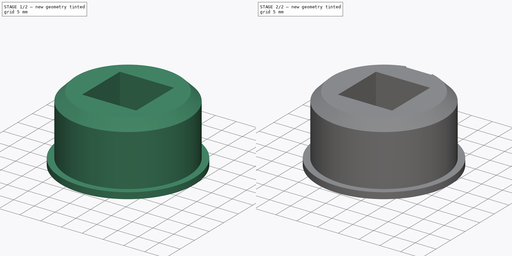
[diagram: build sequence overview — one tinted view per stage of 2, left to right]
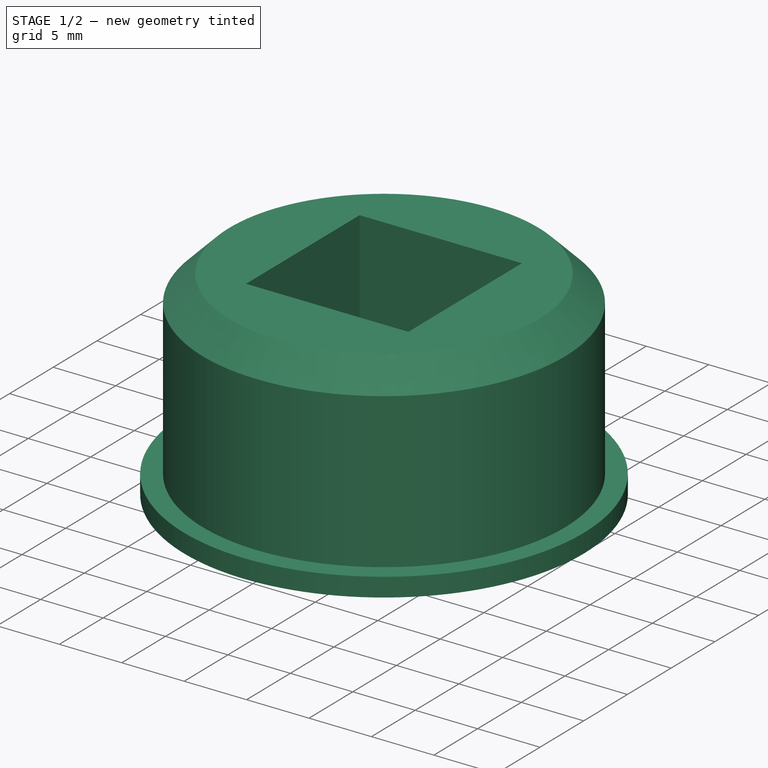
[diagram: stage 1 of 2 — iso view after this stage's code; geometry added in this stage tinted green]
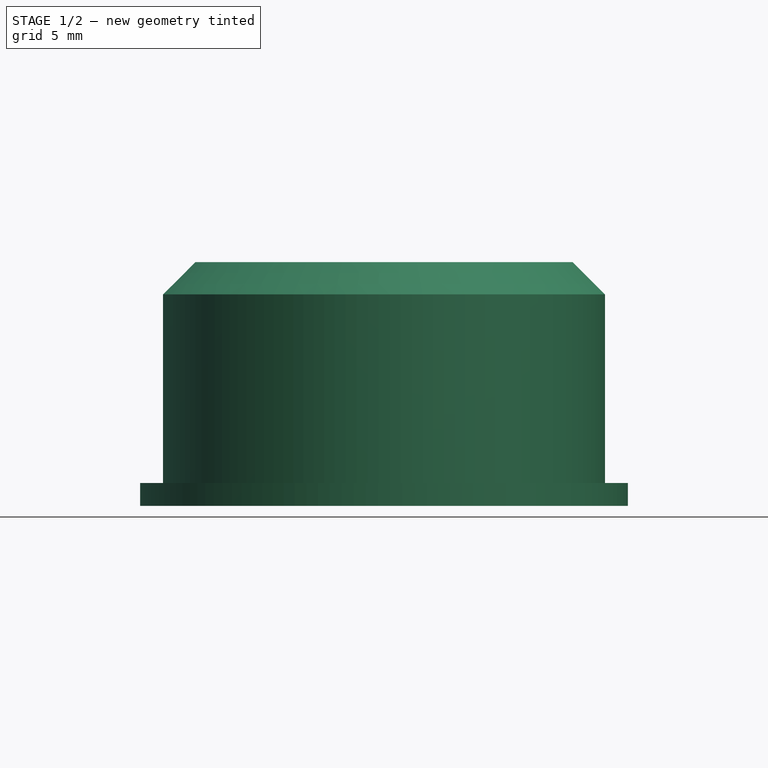
[diagram: stage 1 of 2 — front view after this stage's code; geometry added in this stage tinted green]
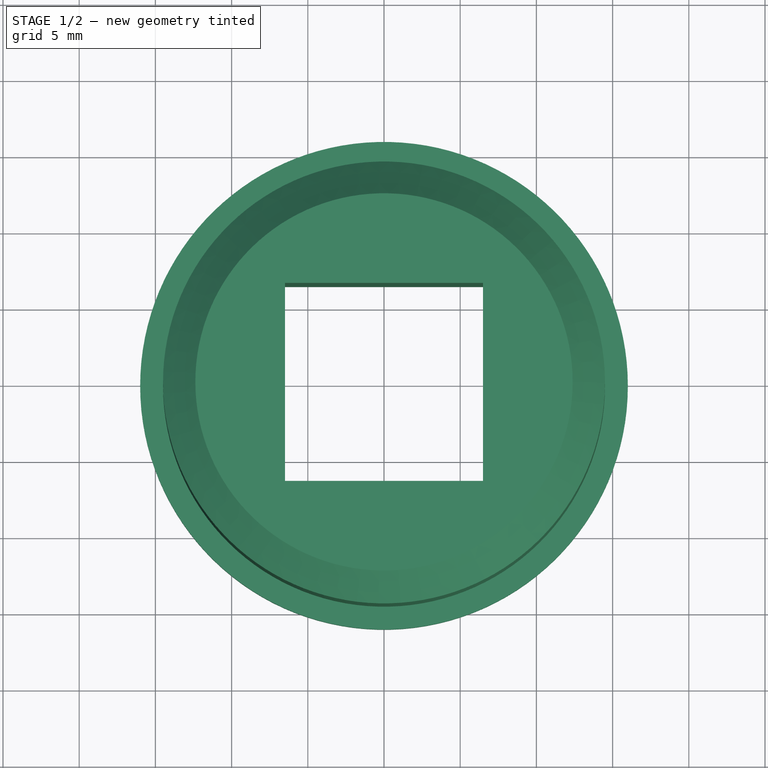
[diagram: stage 1 of 2 — top view after this stage's code; geometry added in this stage tinted green]
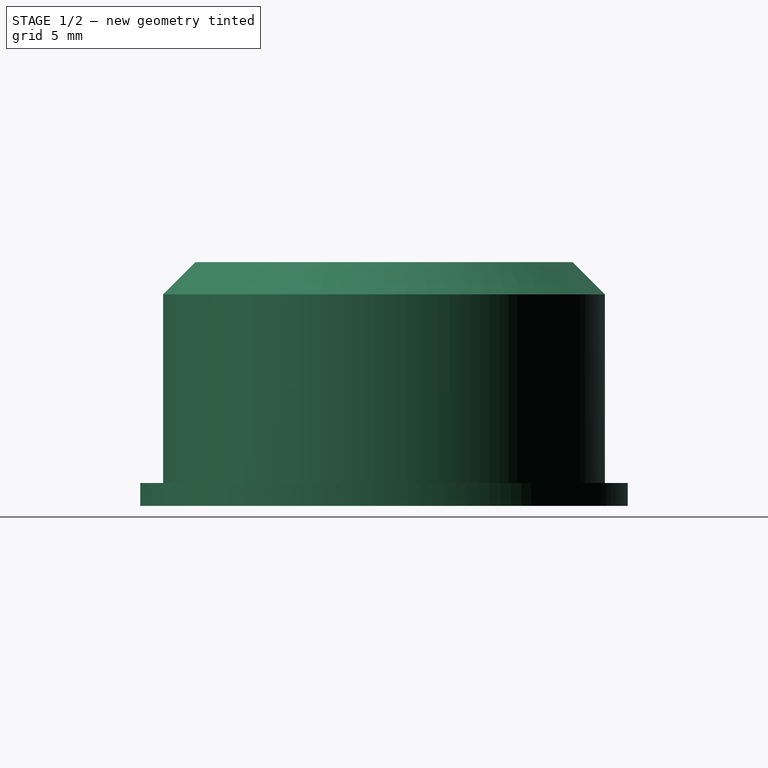
[diagram: stage 1 of 2 — right view after this stage's code; geometry added in this stage tinted green]
FCSTD DOCUMENT  (FreeCAD 0.17R9692 (Git))
Label: 3rdExample
License: All rights reserved
LicenseURL: http://en.wikipedia.org/wiki/All_rights_reserved
objects: Sketcher::SketchObject×4, PartDesign::ShapeBinder×3, PartDesign::Pocket×3, PartDesign::Revolution×1, PartDesign::Body×1, App::Part×1
note: 16 computed .brp shape members not serialized (recipe doc carries the construction recipe); baked Part::Feature solids carry a one-line shape summary decoded from their .brp

FEATURE [Sketcher::SketchObject] Sketch
  MapMode = 5
  Placement = pos=(0,0,0) rot=(1,0,0;1.5708rad)
  Support = -> [XZ_Plane001]
  sketch-geometry (7):
    g0: LineSegment StartX=0 StartY=0 StartZ=0 EndX=16 EndY=0 EndZ=0
    g1: LineSegment StartX=16 StartY=0 StartZ=0 EndX=16 EndY=1.5 EndZ=0
    g2: LineSegment StartX=16 StartY=1.5 StartZ=0 EndX=14.5 EndY=1.5 EndZ=0
    g3: LineSegment StartX=14.5 StartY=1.5 StartZ=0 EndX=14.5 EndY=13.8787 EndZ=0
    g4: LineSegment StartX=14.5 StartY=13.8787 StartZ=0 EndX=12.3787 EndY=16 EndZ=0
    g5: LineSegment StartX=12.3787 StartY=16 StartZ=0 EndX=0 EndY=16 EndZ=0
    g6: LineSegment StartX=0 StartY=16 StartZ=0 EndX=0 EndY=0 EndZ=0
  constraints (20):
    c: Coincident(g-1,g0)
    c: Horizontal(g0)
    c: Coincident(g0,g1)
    c: Vertical(g1)
    c: Coincident(g1,g2)
    c: Horizontal(g2)
    c: Coincident(g2,g3)
    c: Vertical(g3)
    c: Coincident(g3,g4)
    c: Coincident(g4,g5)
    c: Horizontal(g5)
    c: Coincident(g5,g6)
    c: Coincident(g6,g0)
    c: Vertical(g6)
    c: Distance(g4,g0) = 16
    c: Distance(g-1,g1) = 16
    c: Distance(g-1,g3) = 14.5
    c: Angle(g5,g4) = 2.35619
    c: Distance(g1) = 1.5
    c: Distance(g4) = 3
FEATURE [PartDesign::Revolution] Revolution
  Angle = 360
  Axis = (0,0,1)
  Base = (0,0,0)
  Placement = pos=(0,0,0) rot=(1,0,0;1.5708rad)
  Profile = -> Sketch
  ReferenceAxis = -> Sketch [V_Axis]
  Reversed = true
FEATURE [PartDesign::ShapeBinder] ShapeBinder
  Placement = pos=(0,0,0) rot=(1,0,0;1.5708rad)
  Support = -> [Revolution]
FEATURE [Sketcher::SketchObject] Sketch001
  MapMode = 5
  Placement = pos=(0,0,16) rot=(0,0,1;3.14159rad)
  Support = -> [ShapeBinder]
  sketch-geometry (4):
    g0: LineSegment StartX=-6.5 StartY=6.5 StartZ=0 EndX=6.5 EndY=6.5 EndZ=0
    g1: LineSegment StartX=6.5 StartY=6.5 StartZ=0 EndX=6.5 EndY=-6.5 EndZ=0
    g2: LineSegment StartX=6.5 StartY=-6.5 StartZ=0 EndX=-6.5 EndY=-6.5 EndZ=0
    g3: LineSegment StartX=-6.5 StartY=-6.5 StartZ=0 EndX=-6.5 EndY=6.5 EndZ=0
  constraints (12):
    c: Coincident(g0,g1)
    c: Coincident(g1,g2)
    c: Coincident(g2,g3)
    c: Coincident(g3,g0)
    c: Horizontal(g0)
    c: Horizontal(g2)
    c: Vertical(g1)
    c: Vertical(g3)
    c: Equal(g1,g0)
    c: Distance(g1) = 13
    c: Symmetric(g0,g0,g-2)
    c: Symmetric(g1,g0,g-1)
FEATURE [PartDesign::Pocket] Pocket
  BaseFeature = -> Revolution
  Length = 5
  Placement = pos=(0,0,0) rot=(1,0,0;1.5708rad)
  Profile = -> Sketch001
  Type = 1
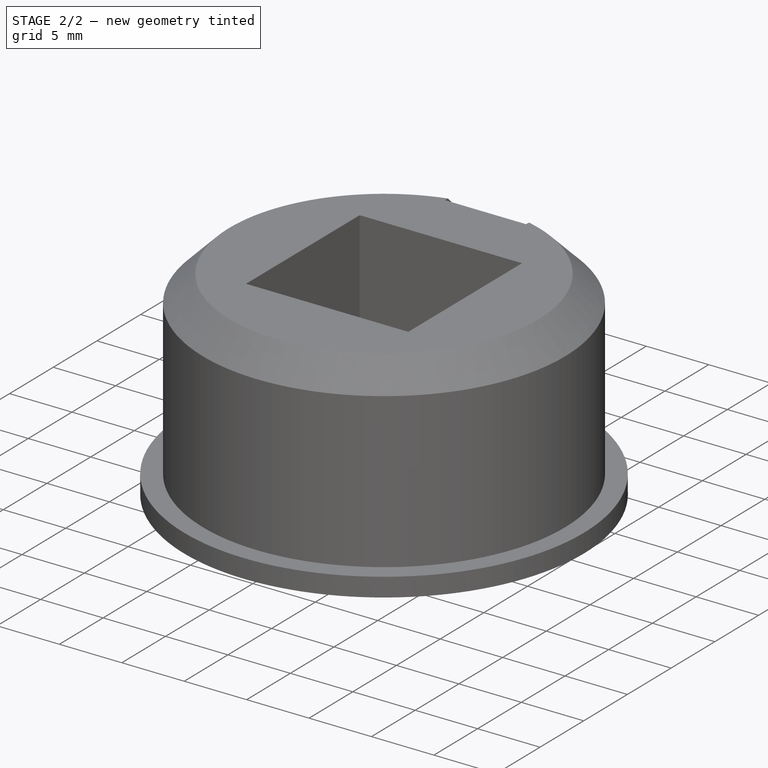
[diagram: stage 2 of 2 — iso view after this stage's code; geometry added in this stage tinted green]
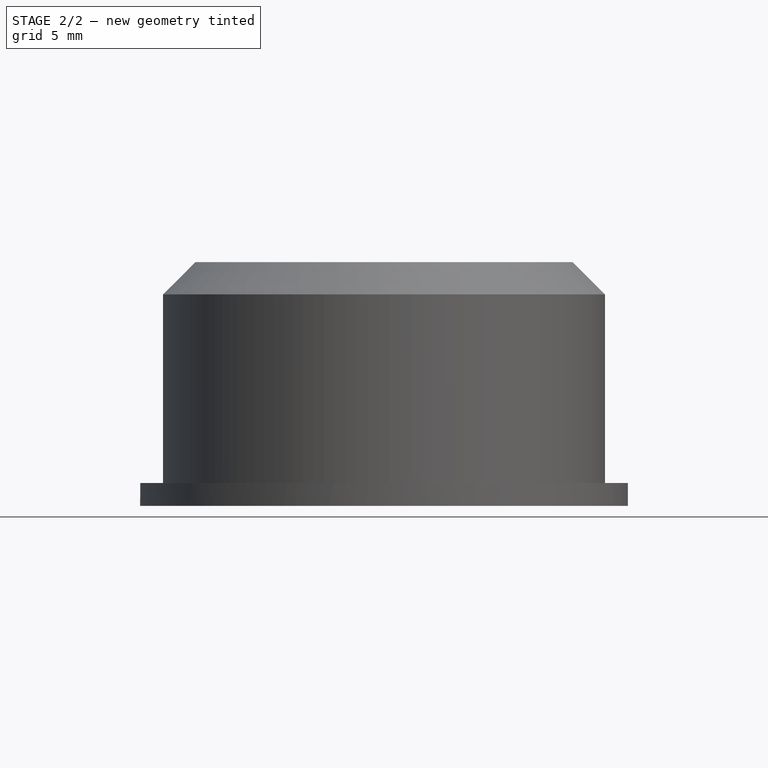
[diagram: stage 2 of 2 — front view after this stage's code; geometry added in this stage tinted green]
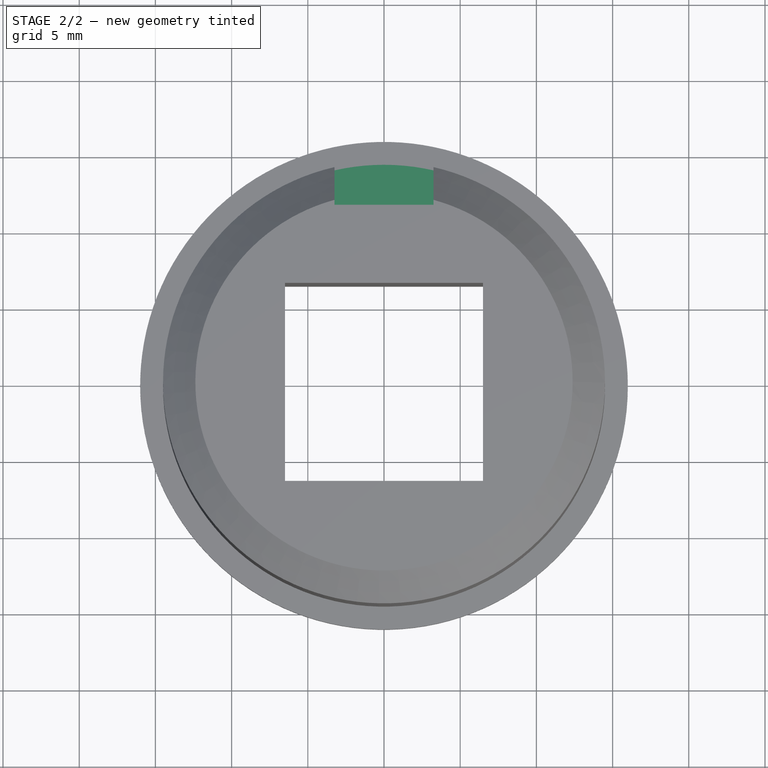
[diagram: stage 2 of 2 — top view after this stage's code; geometry added in this stage tinted green]
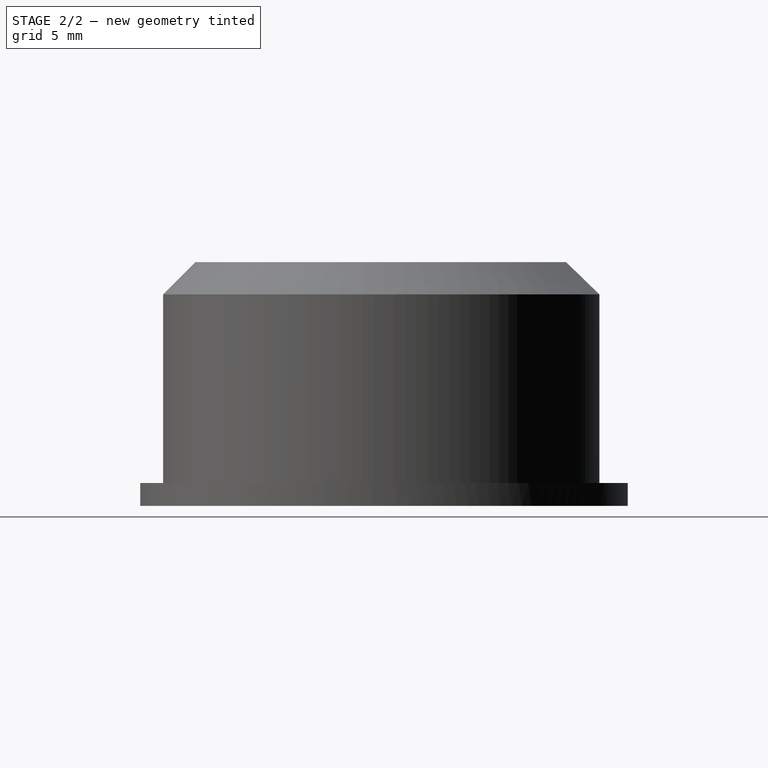
[diagram: stage 2 of 2 — right view after this stage's code; geometry added in this stage tinted green]
FEATURE [Sketcher::SketchObject] Sketch002
  ExternalGeometry = -> [ShapeBinder]
  Placement = pos=(0,0,1.5) rot=(0,0,1;3.14159rad)
  sketch-geometry (5):
    g0: LineSegment StartX=-3.25 StartY=-11.6213 StartZ=0 EndX=3.25 EndY=-11.6213 EndZ=0
    g1: LineSegment StartX=3.25 StartY=-11.6213 StartZ=0 EndX=3.25 EndY=-17.2413 EndZ=0
    g2: LineSegment StartX=3.25 StartY=-17.2413 StartZ=0 EndX=-3.25 EndY=-17.2413 EndZ=0
    g3: LineSegment StartX=-3.25 StartY=-17.2413 StartZ=0 EndX=-3.25 EndY=-11.6213 EndZ=0
    g4: LineSegment [constr] StartX=-10.37 StartY=12.3787 StartZ=0 EndX=10.37 EndY=12.3787 EndZ=0
  constraints (16):
    c: Coincident(g0,g1)
    c: Coincident(g1,g2)
    c: Coincident(g2,g3)
    c: Coincident(g3,g0)
    c: Horizontal(g0)
    c: Horizontal(g2)
    c: Vertical(g1)
    c: Vertical(g3)
    c: Symmetric(g0,g0,g-2)
    c: Distance(g0) = 6.5
    c: Horizontal(g4)
    c: Tangent(g-3,g4)
    c: Distance(g0,g4) = 24
    c: Distance(g4) = 20.74
    c: Symmetric(g4,g4,g-2)
    c: Distance(g1) = 5.62
FEATURE [PartDesign::Pocket] Pocket001
  BaseFeature = -> Pocket
  Length = 25
  Placement = pos=(0,0,0) rot=(1,0,0;1.5708rad)
  Profile = -> Sketch002
  Reversed = true
  Type = 0
FEATURE [PartDesign::ShapeBinder] ShapeBinder002
  Placement = pos=(0,0,0) rot=(1,0,0;1.5708rad)
  Support = -> [Pocket]
FEATURE [PartDesign::ShapeBinder] ShapeBinder003
  Placement = pos=(0,0,0) rot=(1,0,0;1.5708rad)
  Support = -> [Pocket001]
FEATURE [Sketcher::SketchObject] Sketch003
  ExternalGeometry = -> [ShapeBinder003]
  MapMode = 5
  Placement = pos=(0,0,0) rot=(1,0,0;3.14159rad)
  Support = -> [ShapeBinder003]
  sketch-geometry (1):
    g0: Circle CenterX=0 CenterY=0 CenterZ=0 NormalX=0 NormalY=0 NormalZ=1 Radius=11.75
  constraints (2):
    c: Coincident(g0,g-3)
    c: Radius(g0) = 11.75
FEATURE [PartDesign::Pocket] Pocket002
  BaseFeature = -> Pocket001
  Length = 1
  Placement = pos=(0,0,0) rot=(1,0,0;1.5708rad)
  Profile = -> Sketch003
  Type = 0
FEATURE [PartDesign::Body] Body
  Group = -> [Sketch,Revolution,ShapeBinder,Sketch001,Pocket,ShapeBinder002,Sketch002,Pocket001,ShapeBinder003,Sketch003,Pocket002]
  Origin = -> BodyOrigin
  Tip = -> Pocket002
FEATURE [App::Part] Part
  Group = -> [Body]
  License = CC BY 3.0
  LicenseURL = http://creativecommons.org/licenses/by/3.0/
  Origin = -> PartOrigin
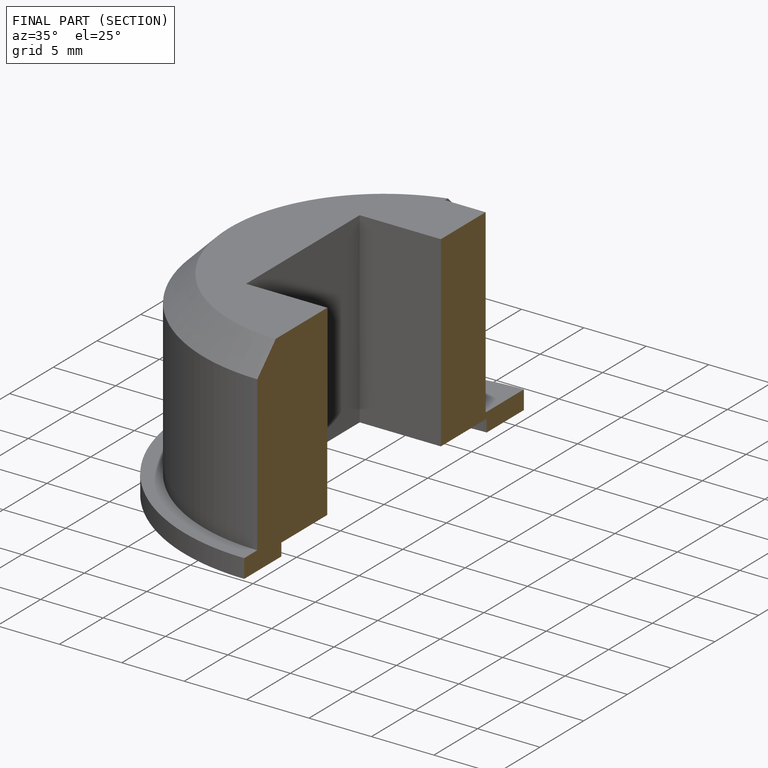
[diagram: finished part — half-section view (interior)]
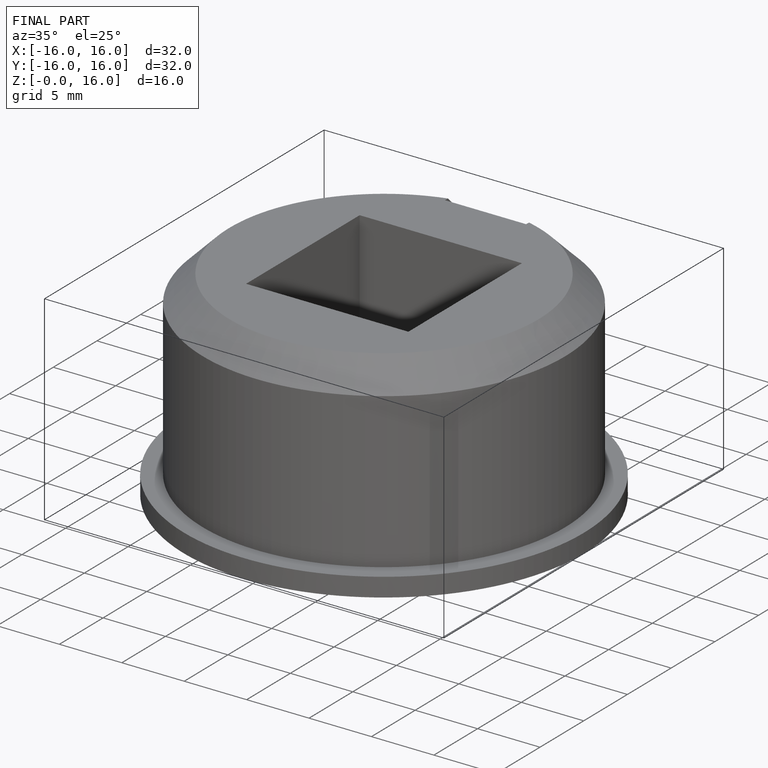
[diagram: finished part — iso view with bounding-box wireframe]
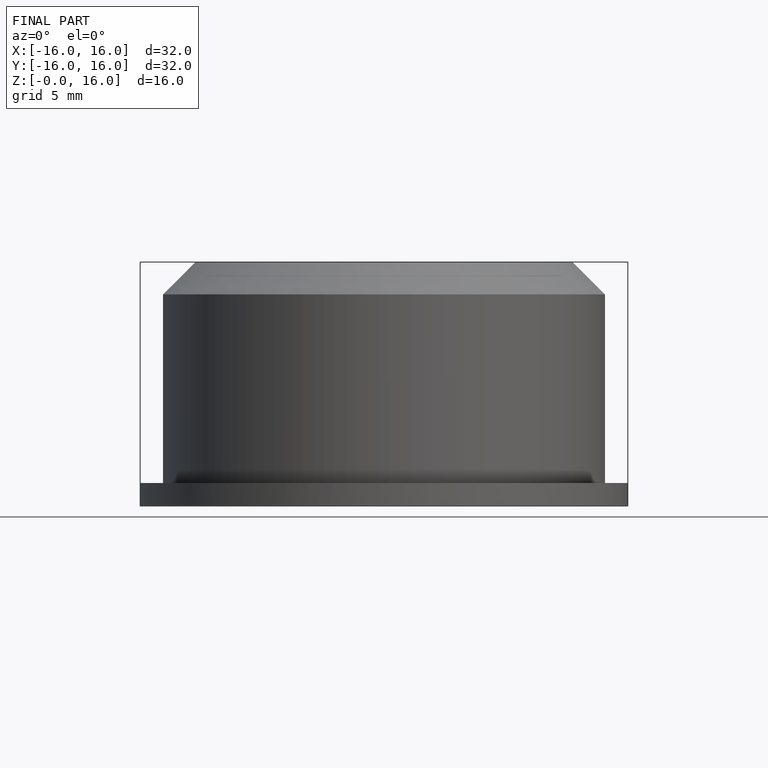
[diagram: finished part — front view with bounding-box wireframe]
